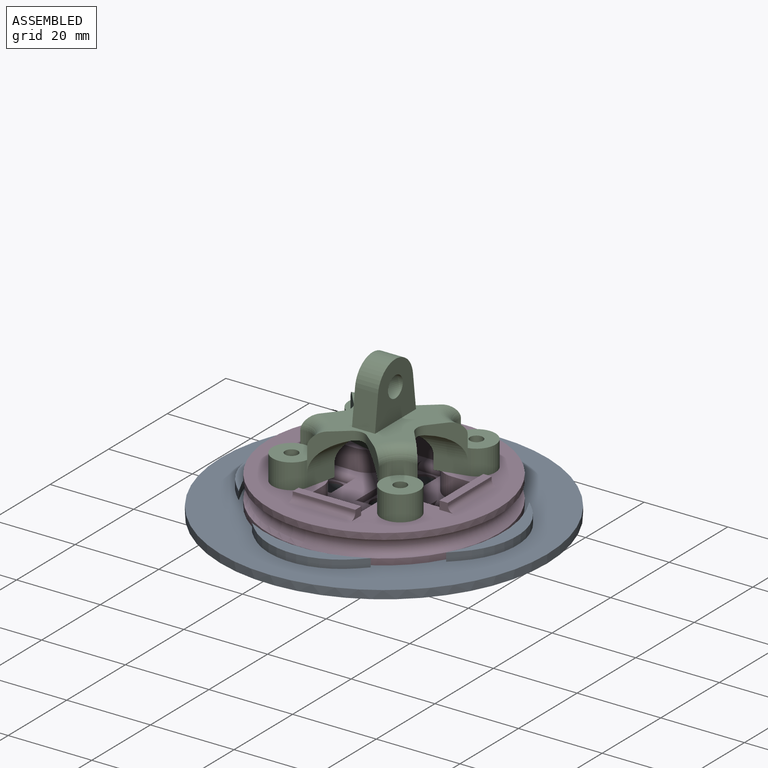
[diagram: assembled view]
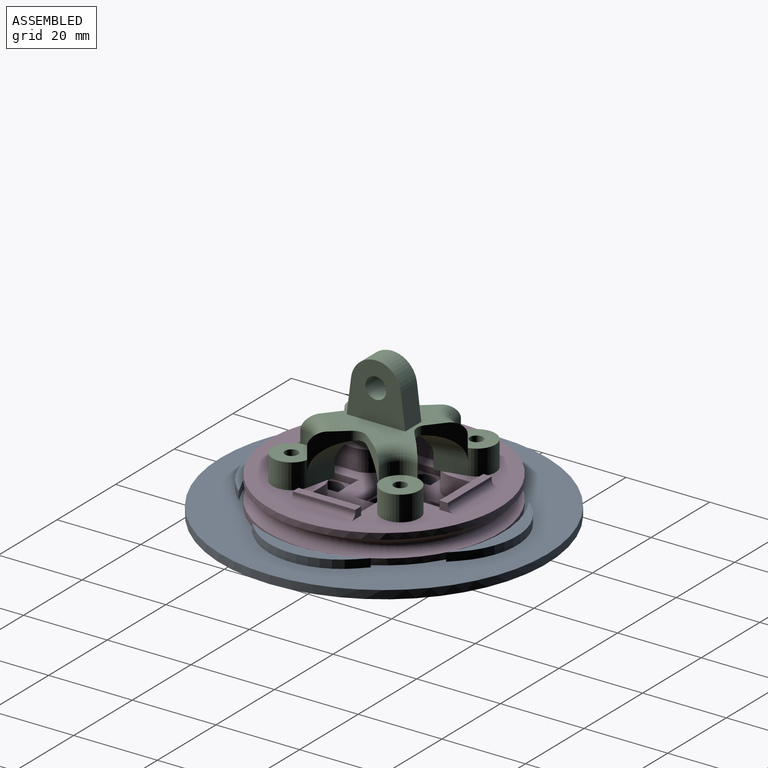
[diagram: assembled view, second angle]
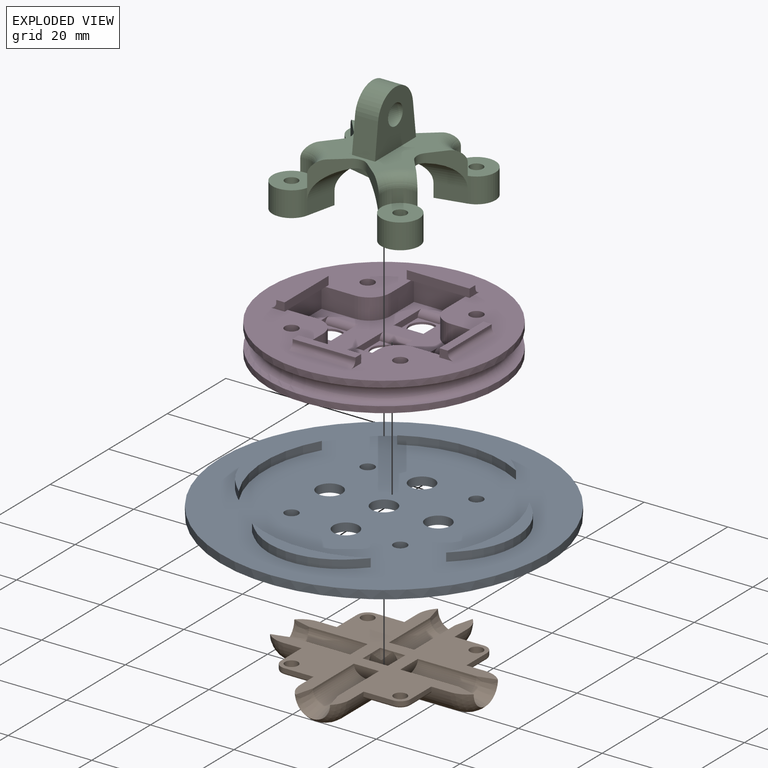
[diagram: exploded view]
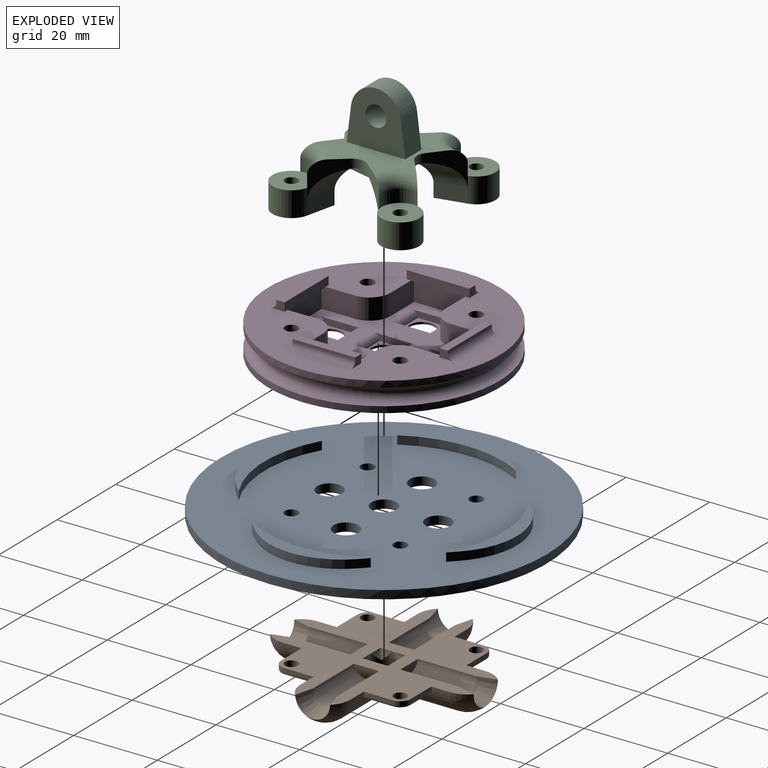
[diagram: exploded view, second angle]
ASSEMBLY  parts=4 mates=3
PART A: 32 faces, bbox 78x78x4 mm
  f0: plane 78x78mm, normal (0,0,-1), area 4347.7mm2, adj f1,f2,f3,f4,f5,f6,f7,f8
  f1: cylinder r=3mm len=6mm, axis (0,0,-1), area 37.7mm2, adj f0,f11
  f2: cylinder r=1.6mm len=3.2mm, axis (0,0,-1), area 20.1mm2, adj f0,f11
  f3: cylinder r=3mm len=6mm, axis (0,0,-1), area 37.7mm2, adj f0,f11
  f4: cylinder r=1.6mm len=3.2mm, axis (0,0,-1), area 20.1mm2, adj f0,f11
  f5: cylinder r=3mm len=6mm, axis (0,0,-1), area 37.7mm2, adj f0,f11
  f6: cylinder r=1.6mm len=3.2mm, axis (0,0,-1), area 20.1mm2, adj f0,f11
  f7: cylinder r=3mm len=6mm, axis (0,0,-1), area 37.7mm2, adj f0,f11
  f8: cylinder r=1.6mm len=3.2mm, axis (0,0,-1), area 20.1mm2, adj f0,f11
  f9: cylinder r=39mm len=78mm, axis (0,0,-1), area 490.1mm2, adj f0,f11
  f10: cylinder r=3mm len=6mm, axis (0,0,-1), area 37.7mm2, adj f0,f11
  f11: plane 78x78mm, normal (0,0,1), area 4604.8mm2, adj f1,f2,f3,f4,f5,f6,f7,f8
  f12: cylinder r=28.58mm len=28.4mm, axis (0,0,1), area 59.4mm2, adj f0,f13,f14,f15
  f13: plane 2x1.91mm, normal (-0.71,0.71,0), area 5.4mm2, adj f0,f12,f15,f29
  f14: plane 2x1.91mm, normal (-0.71,-0.71,0), area 5.4mm2, adj f0,f12,f15,f29
  f15: plane 28.4x7mm, normal (0,0,-1), area 64.3mm2, adj f12,f13,f14,f29
  f16: plane 2x1.91mm, normal (0.71,0.71,0), area 5.4mm2, adj f0,f18,f19,f31
  f17: plane 2x1.91mm, normal (-0.71,0.71,0), area 5.4mm2, adj f0,f18,f19,f31
  f18: cylinder r=28.58mm len=28.4mm, axis (0,0,1), area 59.4mm2, adj f0,f16,f17,f19
  f19: plane 28.4x7mm, normal (0,0,-1), area 64.3mm2, adj f16,f17,f18,f31
  f20: plane 2x1.91mm, normal (0.71,0.71,0), area 5.4mm2, adj f0,f21,f23,f30
  f21: cylinder r=28.58mm len=28.4mm, axis (0,0,1), area 59.4mm2, adj f0,f20,f22,f23
  f22: plane 2x1.91mm, normal (0.71,-0.71,0), area 5.4mm2, adj f0,f21,f23,f30
  f23: plane 28.4x7mm, normal (0,0,-1), area 64.3mm2, adj f20,f21,f22,f30
  f24: plane 2x1.91mm, normal (0.71,-0.71,0), area 5.4mm2, adj f0,f25,f27,f28
  f25: cylinder r=28.58mm len=28.4mm, axis (0,0,1), area 59.4mm2, adj f0,f24,f26,f27
  f26: plane 2x1.91mm, normal (-0.71,-0.71,0), area 5.4mm2, adj f0,f25,f27,f28
  f27: plane 28.4x7mm, normal (0,0,-1), area 64.3mm2, adj f24,f25,f26,f28
  f28: cylinder r=17.38mm len=24.58mm, axis (0,0,-1), area 54.6mm2, adj f0,f24,f26,f27
  f29: cylinder r=17.38mm len=24.58mm, axis (0,0,1), area 54.6mm2, adj f0,f13,f14,f15
  f30: cylinder r=17.38mm len=24.58mm, axis (0,0,1), area 54.6mm2, adj f0,f20,f22,f23
  f31: cylinder r=17.38mm len=24.58mm, axis (0,0,-1), area 54.6mm2, adj f0,f16,f17,f19
PART B: 66 faces, bbox 7x49.7x49.7 mm
  f0: cylinder r=6mm len=17.37mm, axis (0,1,0), area 226.9mm2, adj f18,f19,f29,f35,f37,f42,f45,f53
  f1: cylinder r=6mm len=17.37mm, axis (0,0,-1), area 226.7mm2, adj f16,f18,f29,f38,f41,f43,f45,f58
  f2: cylinder r=6mm len=17.37mm, axis (0,0,-1), area 226.7mm2, adj f17,f18,f29,f31,f33,f34,f37,f50
  f3: cylinder r=6mm len=17.37mm, axis (0,1,0), area 226.7mm2, adj f18,f23,f29,f30,f33,f39,f41,f52
  f4: cylinder r=3mm len=3mm, axis (0,0,-1), area 3.5mm2, adj f18,f27,f29
  f5: cylinder r=3mm len=3mm, axis (0,0,-1), area 3.5mm2, adj f7,f18,f29
  f6: cylinder r=3mm len=3mm, axis (0,1,0), area 3.5mm2, adj f9,f18,f29
  f7: cylinder r=3mm len=3mm, axis (0,1,0), area 3.5mm2, adj f5,f18,f29
  f8: cylinder r=3mm len=3mm, axis (0,0,-1), area 3.5mm2, adj f18,f26,f29
  f9: cylinder r=3mm len=3mm, axis (0,0,-1), area 3.5mm2, adj f6,f18,f29
  f10: cylinder r=3mm len=14mm, axis (0,0,-1), area 131.9mm2, adj f15,f18,f28
  f11: cylinder r=6mm len=6mm, axis (0,0,-1), area 14.6mm2, adj f18,f21
  f12: cylinder r=6mm len=6mm, axis (0,0,-1), area 14.6mm2, adj f18,f24
  f13: cone r=3mm half-angle=14.8deg, axis (0,0,1), area 50.4mm2, adj f14,f17,f18
  f14: cylinder r=3mm len=14mm, axis (0,0,-1), area 131.9mm2, adj f13,f18,f25
  f15: cone r=3mm half-angle=14.8deg, axis (0,0,-1), area 50.4mm2, adj f10,f16,f18
  f16: sphere r=6mm, area 81.8mm2, adj f1,f15,f18
  f17: sphere r=6mm, area 81.8mm2, adj f2,f13,f18
  f18: plane 48.67x48.67mm, normal (1,0,0), area 833.8mm2, adj f0,f1,f2,f3,f4,f5,f6,f7
  f19: sphere r=6mm, area 81.8mm2, adj f0,f18,f20
  f20: cone r=3mm half-angle=14.8deg, axis (0,1,0), area 50.4mm2, adj f18,f19,f21
  f21: cylinder r=3mm len=14mm, axis (0,1,0), area 131.9mm2, adj f11,f18,f20
  f22: cone r=3mm half-angle=14.8deg, axis (0,-1,0), area 50.4mm2, adj f18,f23,f24
  f23: sphere r=6mm, area 81.8mm2, adj f3,f18,f22
  f24: cylinder r=3mm len=14mm, axis (0,1,0), area 131.9mm2, adj f12,f18,f22
  f25: cylinder r=6mm len=6mm, axis (0,1,0), area 14.6mm2, adj f14,f18
  f26: cylinder r=3mm len=3mm, axis (0,1,0), area 3.5mm2, adj f8,f18,f29
  f27: cylinder r=3mm len=3mm, axis (0,1,0), area 3.5mm2, adj f4,f18,f29
  f28: cylinder r=6mm len=6mm, axis (0,1,0), area 14.6mm2, adj f10,f18
  f29: cylinder r=3mm len=6mm, axis (1,0,0), area 90.1mm2, adj f0,f1,f2,f3,f4,f5,f6,f7
  f30: plane 7.08x1mm, normal (0,-1,0), area 7mm2, adj f3,f18,f32,f52
  f31: plane 7.08x1mm, normal (0,0,1), area 7mm2, adj f2,f18,f32,f50
  f32: cylinder r=2.5mm len=2.5mm, axis (1,0,0), area 3.9mm2, adj f18,f30,f31,f51
  f33: plane 10.21x10.21mm, normal (-1,0,0), area 71.3mm2, adj f2,f3,f49,f50,f51,f52,f64
  f34: plane 7.08x1mm, normal (0,0,1), area 7mm2, adj f2,f18,f36,f55
  f35: plane 7.08x1mm, normal (0,1,0), area 7mm2, adj f0,f18,f36,f53
  f36: cylinder r=2.5mm len=2.5mm, axis (1,0,0), area 3.9mm2, adj f18,f34,f35,f54
  f37: plane 10.21x10.21mm, normal (-1,0,0), area 71.3mm2, adj f0,f2,f48,f53,f54,f55,f63
  f38: plane 7.08x1mm, normal (0,0,-1), area 7mm2, adj f1,f18,f40,f61
  f39: plane 7.08x1mm, normal (0,-1,0), area 7mm2, adj f3,f18,f40,f59
  f40: cylinder r=2.5mm len=2.5mm, axis (1,0,0), area 3.9mm2, adj f18,f38,f39,f60
  f41: plane 10.21x10.21mm, normal (-1,0,0), area 71.3mm2, adj f1,f3,f47,f59,f60,f61,f62
  f42: plane 7.08x1mm, normal (0,1,0), area 7mm2, adj f0,f18,f44,f56
  f43: plane 7.08x1mm, normal (0,0,-1), area 7mm2, adj f1,f18,f44,f58
  f44: cylinder r=2.5mm len=2.5mm, axis (1,0,0), area 3.9mm2, adj f18,f42,f43,f57
  f45: plane 10.21x10.21mm, normal (-1,0,0), area 71.3mm2, adj f0,f1,f46,f56,f57,f58,f65
  f46: cylinder r=1.55mm len=3.1mm, axis (1,0,0), area 14.6mm2, adj f18,f45
  f47: cylinder r=1.55mm len=3.1mm, axis (1,0,0), area 14.6mm2, adj f18,f41
  f48: cylinder r=1.55mm len=3.1mm, axis (1,0,0), area 14.6mm2, adj f18,f37
  f49: cylinder r=1.55mm len=3.1mm, axis (1,0,0), area 14.6mm2, adj f18,f33
  f50: cylinder r=0.5mm len=7.19mm, axis (0,1,0), area 5.6mm2, adj f2,f31,f33,f51
  f51: torus R=2mm, axis (1,0,0), area 2.9mm2, adj f32,f33,f50,f52
  f52: cylinder r=0.5mm len=7.19mm, axis (0,0,1), area 5.6mm2, adj f3,f30,f33,f51
  f53: cylinder r=0.5mm len=7.19mm, axis (0,0,-1), area 5.6mm2, adj f0,f35,f37,f54
  f54: torus R=2mm, axis (1,0,0), area 2.9mm2, adj f36,f37,f53,f55
  f55: cylinder r=0.5mm len=7.19mm, axis (0,1,0), area 5.6mm2, adj f2,f34,f37,f54
  f56: cylinder r=0.5mm len=7.19mm, axis (0,0,-1), area 5.6mm2, adj f0,f42,f45,f57
  f57: torus R=2mm, axis (1,0,0), area 2.9mm2, adj f44,f45,f56,f58
  f58: cylinder r=0.5mm len=7.19mm, axis (0,-1,0), area 5.6mm2, adj f1,f43,f45,f57
  f59: cylinder r=0.5mm len=7.19mm, axis (0,0,1), area 5.6mm2, adj f3,f39,f41,f60
  f60: torus R=2mm, axis (1,0,0), area 2.9mm2, adj f40,f41,f59,f61
  f61: cylinder r=0.5mm len=7.19mm, axis (0,-1,0), area 5.6mm2, adj f1,f38,f41,f60
  f62: bspline ~9.21x9.21mm, area 43.9mm2, adj f1,f3,f29,f41
  f63: bspline ~9.21x9.21mm, area 43.9mm2, adj f0,f2,f29,f37
  f64: bspline ~9.21x9.21mm, area 43.9mm2, adj f2,f3,f29,f33
  f65: bspline ~9.21x9.21mm, area 43.9mm2, adj f0,f1,f29,f45
PART C: 63 faces, bbox 35.1x35.1x25.5 mm
  f0: plane 0.91x0.42mm, normal (0,0,1), area 0.2mm2, adj f52,f54,f57
  f1: plane 0.91x0.42mm, normal (0,0,1), area 0.2mm2, adj f48,f50,f58
  f2: plane 0.91x0.42mm, normal (0,0,1), area 0.2mm2, adj f51,f53,f56
  f3: plane 9.1x9.1mm, normal (0,0,-1), area 57.5mm2, adj f6,f7,f9
  f4: plane 7.06x3.22mm, normal (-0.97,0.22,0), area 23.3mm2, adj f5,f6,f8,f53
  f5: plane 7.06x3.22mm, normal (0.22,-0.97,0), area 23.3mm2, adj f4,f6,f8,f54
  f6: cylinder r=4.55mm len=8.99mm, axis (0,0,-1), area 116.4mm2, adj f3,f4,f5,f8,f38,f39
  f7: cylinder r=1.55mm len=6mm, axis (0,0,-1), area 58.4mm2, adj f3,f8
  f8: plane 10.6x10.6mm, normal (0,0,1), area 69.5mm2, adj f4,f5,f6,f7
  f9: cylinder r=4.55mm len=5.56mm, axis (0,0,1), area 27.6mm2, adj f3,f38,f39,f60
  f10: plane 9.1x9.1mm, normal (0,0,-1), area 57.5mm2, adj f13,f14,f16
  f11: plane 7.06x3.22mm, normal (-0.22,-0.97,0), area 23.3mm2, adj f12,f13,f15,f49
  f12: plane 7.06x3.22mm, normal (0.97,0.22,0), area 23.3mm2, adj f11,f13,f15,f51
  f13: cylinder r=4.55mm len=8.99mm, axis (0,0,-1), area 116.4mm2, adj f10,f11,f12,f15,f36,f37
  f14: cylinder r=1.55mm len=6mm, axis (0,0,-1), area 58.4mm2, adj f10,f15
  f15: plane 10.6x10.6mm, normal (0,0,1), area 69.5mm2, adj f11,f12,f13,f14
  f16: cylinder r=4.55mm len=5.56mm, axis (0,0,1), area 27.6mm2, adj f10,f36,f37,f59
  f17: plane 0.91x0.42mm, normal (0,0,1), area 0.2mm2, adj f47,f49,f55
  f18: plane 9.1x9.1mm, normal (0,0,-1), area 57.5mm2, adj f21,f22,f30
  f19: plane 7.06x3.22mm, normal (0.97,-0.22,0), area 23.3mm2, adj f20,f21,f23,f48
  f20: plane 7.06x3.22mm, normal (-0.22,0.97,0), area 23.3mm2, adj f19,f21,f23,f47
  f21: cylinder r=4.55mm len=8.99mm, axis (0,0,-1), area 116.4mm2, adj f18,f19,f20,f23,f35,f42
  f22: cylinder r=1.55mm len=6mm, axis (0,0,-1), area 58.4mm2, adj f18,f23
  f23: plane 10.6x10.6mm, normal (0,0,1), area 69.5mm2, adj f19,f20,f21,f22
  f24: plane 9.1x9.1mm, normal (0,0,-1), area 57.5mm2, adj f27,f28,f31
  f25: plane 7.06x3.22mm, normal (0.22,0.97,0), area 23.3mm2, adj f26,f27,f29,f52
  f26: plane 7.06x3.22mm, normal (-0.97,-0.22,0), area 23.3mm2, adj f25,f27,f29,f50
  f27: cylinder r=4.55mm len=8.99mm, axis (0,0,-1), area 116.4mm2, adj f24,f25,f26,f29,f40,f41
  f28: cylinder r=1.55mm len=6mm, axis (0,0,-1), area 58.4mm2, adj f24,f29
  f29: plane 10.6x10.6mm, normal (0,0,1), area 69.5mm2, adj f25,f26,f27,f28
  f30: cylinder r=4.55mm len=5.56mm, axis (0,0,1), area 27.6mm2, adj f18,f35,f42,f62
  f31: cylinder r=4.55mm len=5.56mm, axis (0,0,1), area 27.6mm2, adj f24,f40,f41,f61
  f32: plane 14x13.5mm, normal (-1,0,0), area 134.8mm2, adj f34,f43,f44,f45,f46
  f33: plane 14x13.5mm, normal (1,0,0), area 134.8mm2, adj f34,f43,f44,f45,f46
  f34: plane 23.15x23.15mm, normal (0,0,-1), area 259.8mm2, adj f32,f33,f35,f36,f37,f38,f39,f40
  f35: plane 8.78x6.66mm, normal (-0.77,0.63,0), area 30.5mm2, adj f21,f30,f34,f47,f55,f62
  f36: plane 8.78x6.66mm, normal (-0.77,-0.63,0), area 30.5mm2, adj f13,f16,f34,f49,f55,f59
  f37: plane 8.78x6.66mm, normal (0.63,0.77,0), area 30.5mm2, adj f13,f16,f34,f51,f56,f59
  f38: plane 8.78x6.66mm, normal (-0.63,0.77,0), area 30.5mm2, adj f6,f9,f34,f53,f56,f60
  f39: plane 8.78x6.66mm, normal (0.77,-0.63,0), area 30.5mm2, adj f6,f9,f34,f54,f57,f60
  f40: plane 8.78x6.66mm, normal (0.77,0.63,0), area 30.5mm2, adj f27,f31,f34,f52,f57,f61
  f41: plane 8.78x6.66mm, normal (-0.63,-0.77,0), area 30.5mm2, adj f27,f31,f34,f50,f58,f61
  f42: plane 8.78x6.66mm, normal (0.63,-0.77,0), area 30.5mm2, adj f21,f30,f34,f48,f58,f62
  f43: plane 8.26x5.5mm, normal (0,0.99,-0.13), area 45.8mm2, adj f32,f33,f34,f44
  f44: cylinder r=6mm len=11.9mm, axis (-1,0,0), area 95.3mm2, adj f32,f33,f43,f46
  f45: cylinder r=2.5mm len=5.5mm, axis (-1,0,0), area 86.4mm2, adj f32,f33
  f46: plane 8.26x5.5mm, normal (0,-0.99,-0.13), area 45.8mm2, adj f32,f33,f34,f44
  f47: cylinder r=6.78mm len=16.68mm, axis (0.97,0.22,0), area 78.4mm2, adj f17,f20,f35,f48,f49,f55
  f48: cylinder r=6.78mm len=16.68mm, axis (-0.22,-0.97,0), area 78.4mm2, adj f1,f19,f42,f47,f50,f58
  f49: cylinder r=6.78mm len=16.68mm, axis (-0.97,0.22,0), area 78.4mm2, adj f11,f17,f36,f47,f51,f55
  f50: cylinder r=6.78mm len=16.68mm, axis (-0.22,0.97,0), area 78.4mm2, adj f1,f26,f41,f48,f52,f58
  f51: cylinder r=6.78mm len=16.68mm, axis (0.22,-0.97,0), area 78.4mm2, adj f2,f12,f37,f49,f53,f56
  f52: cylinder r=6.78mm len=16.68mm, axis (0.97,-0.22,0), area 78.4mm2, adj f0,f25,f40,f50,f54,f57
  f53: cylinder r=6.78mm len=16.68mm, axis (0.22,0.97,0), area 78.4mm2, adj f2,f4,f38,f51,f54,f56
  f54: cylinder r=6.78mm len=16.68mm, axis (-0.97,-0.22,0), area 78.4mm2, adj f0,f5,f39,f52,f53,f57
  f55: cylinder r=3mm len=3.8mm, axis (0,0,1), area 8.5mm2, adj f17,f34,f35,f36,f47,f49
  f56: cylinder r=3mm len=3.8mm, axis (0,0,-1), area 8.5mm2, adj f2,f34,f37,f38,f51,f53
  f57: cylinder r=3mm len=3.8mm, axis (0,0,1), area 8.5mm2, adj f0,f34,f39,f40,f52,f54
  f58: cylinder r=3mm len=3.8mm, axis (0,0,-1), area 8.5mm2, adj f1,f34,f41,f42,f48,f50
  f59: torus R=7.55mm, axis (0,0,-1), area 42.4mm2, adj f16,f34,f36,f37
  f60: torus R=7.55mm, axis (0,0,-1), area 42.4mm2, adj f9,f34,f38,f39
  f61: torus R=7.55mm, axis (0,0,-1), area 42.4mm2, adj f31,f34,f40,f41
  f62: torus R=7.55mm, axis (0,0,-1), area 42.4mm2, adj f30,f34,f35,f42
PART D: 94 faces, bbox 62.8x62.8x9 mm
  f0: cylinder r=27.58mm len=55.15mm, axis (0,0,-1), area 259.9mm2, adj f25,f93
  f1: plane 55.15x55.15mm, normal (0,0,1), area 1337.1mm2, adj f9,f10,f12,f13,f15,f16,f18,f19
  f2: cylinder r=3mm len=6mm, axis (0,0,-1), area 9.4mm2, adj f25,f50
  f3: cylinder r=3mm len=6mm, axis (0,0,-1), area 9.4mm2, adj f25,f30
  f4: cylinder r=3mm len=6mm, axis (0,0,-1), area 9.4mm2, adj f25,f45
  f5: cylinder r=3mm len=6mm, axis (0,0,-1), area 9.4mm2, adj f25,f40
  f6: cylinder r=3mm len=6mm, axis (0,0,-1), area 9.4mm2, adj f25,f35
  f7: plane 39x39mm, normal (0,0,1), area 521.8mm2, adj f8,f9,f10,f11,f12,f13,f14,f15
  f8: plane 13x5mm, normal (1,0,0), area 65mm2, adj f7,f9,f23,f67
  f9: plane 8x5mm, normal (0,-1,0), area 40mm2, adj f1,f7,f8,f51,f67
  f10: plane 8x5mm, normal (1,0,0), area 40mm2, adj f1,f7,f11,f51,f61
  f11: plane 13x5mm, normal (0,-1,0), area 65mm2, adj f7,f10,f12,f61
  f12: plane 8x5mm, normal (-1,0,0), area 40mm2, adj f1,f7,f11,f54,f61
  f13: plane 8x5mm, normal (0,-1,0), area 40mm2, adj f1,f7,f14,f54,f55
  f14: plane 13x5mm, normal (-1,0,0), area 65mm2, adj f7,f13,f15,f55
  f15: plane 8x5mm, normal (0,1,0), area 40mm2, adj f1,f7,f14,f53,f55
  f16: plane 8x5mm, normal (-1,0,0), area 40mm2, adj f1,f7,f17,f53,f73
  f17: plane 13x5mm, normal (0,1,0), area 65mm2, adj f7,f16,f18,f73
  f18: plane 8x5mm, normal (1,0,0), area 40mm2, adj f1,f7,f17,f52,f73
  f19: cylinder r=1.6mm len=7mm, axis (0,0,-1), area 70.4mm2, adj f1,f25
  f20: cylinder r=1.6mm len=7mm, axis (0,0,-1), area 70.4mm2, adj f1,f25
  f21: cylinder r=1.6mm len=7mm, axis (0,0,-1), area 70.4mm2, adj f1,f25
  f22: cylinder r=27.58mm len=55.15mm, axis (0,0,-1), area 259.9mm2, adj f1,f93
  f23: plane 8x5mm, normal (0,1,0), area 40mm2, adj f1,f7,f8,f52,f67
  f24: cylinder r=1.6mm len=7mm, axis (0,0,-1), area 70.4mm2, adj f1,f25
  f25: plane 55.15x55.15mm, normal (0,0,-1), area 2215.6mm2, adj f0,f2,f3,f4,f5,f6,f19,f20
  f26: plane 7x0.08mm, normal (0,-1,0), area 0.5mm2, adj f27,f29,f30,f90
  f27: plane 9.85x1.5mm, normal (1,0,0), area 11.4mm2, adj f7,f26,f28,f30,f89,f90
  f28: plane 7x0.08mm, normal (0,1,0), area 0.5mm2, adj f27,f29,f30,f89
  f29: plane 9.85x1.5mm, normal (-1,0,0), area 11.4mm2, adj f7,f26,f28,f30,f89,f90
  f30: plane 7x7mm, normal (0,0,1), area 20.7mm2, adj f3,f26,f27,f28,f29
  f31: plane 9.85x1.5mm, normal (1,0,0), area 11.4mm2, adj f7,f32,f34,f35,f87,f88
  f32: plane 7x0.08mm, normal (0,1,0), area 0.5mm2, adj f31,f33,f35,f87
  f33: plane 9.85x1.5mm, normal (-1,0,0), area 11.4mm2, adj f7,f32,f34,f35,f87,f88
  f34: plane 7x0.08mm, normal (0,-1,0), area 0.5mm2, adj f31,f33,f35,f88
  f35: plane 7x7mm, normal (0,0,1), area 20.7mm2, adj f6,f31,f32,f33,f34
  f36: plane 7x0.08mm, normal (0,1,0), area 0.5mm2, adj f37,f39,f40,f86
  f37: plane 9.85x1.5mm, normal (-1,0,0), area 11.4mm2, adj f7,f36,f38,f40,f85,f86
  f38: plane 7x0.08mm, normal (0,-1,0), area 0.5mm2, adj f37,f39,f40,f85
  f39: plane 9.85x1.5mm, normal (1,0,0), area 11.4mm2, adj f7,f36,f38,f40,f85,f86
  f40: plane 7x7mm, normal (0,0,1), area 20.7mm2, adj f5,f36,f37,f38,f39
  f41: plane 9.85x1.5mm, normal (-1,0,0), area 11.4mm2, adj f7,f42,f44,f45,f83,f84
  f42: plane 7x0.08mm, normal (0,-1,0), area 0.5mm2, adj f41,f43,f45,f83
  f43: plane 9.85x1.5mm, normal (1,0,0), area 11.4mm2, adj f7,f42,f44,f45,f83,f84
  f44: plane 7x0.08mm, normal (0,1,0), area 0.5mm2, adj f41,f43,f45,f84
  f45: plane 7x7mm, normal (0,0,1), area 20.7mm2, adj f4,f41,f42,f43,f44
  f46: plane 9.85x1.5mm, normal (-1,0,0), area 11.4mm2, adj f7,f47,f49,f50,f91,f92
  f47: plane 7x0.08mm, normal (0,-1,0), area 0.5mm2, adj f46,f48,f50,f91
  f48: plane 9.85x1.5mm, normal (1,0,0), area 11.4mm2, adj f7,f47,f49,f50,f91,f92
  f49: plane 7x0.08mm, normal (0,1,0), area 0.5mm2, adj f46,f48,f50,f92
  f50: plane 7x7mm, normal (0,0,1), area 20.7mm2, adj f2,f46,f47,f48,f49
  f51: cylinder r=5mm len=5mm, axis (0,0,1), area 39.3mm2, adj f1,f7,f9,f10
  f52: cylinder r=5mm len=5mm, axis (0,0,1), area 39.3mm2, adj f1,f7,f18,f23
  f53: cylinder r=5mm len=5mm, axis (0,0,1), area 39.3mm2, adj f1,f7,f15,f16
  f54: cylinder r=5mm len=5mm, axis (0,0,1), area 39.3mm2, adj f1,f7,f12,f13
  f55: plane 13x1mm, normal (0,0,-1), area 13mm2, adj f13,f14,f15,f56
  f56: plane 15x2mm, normal (-1,0,0), area 30mm2, adj f1,f55,f57,f59,f60
  f57: plane 3.42x2mm, normal (0,-1,0), area 4.4mm2, adj f1,f56,f58,f60,f82
  f58: plane 15x0.58mm, normal (1,0,0), area 8.6mm2, adj f57,f59,f60,f82
  f59: plane 3.42x2mm, normal (0,1,0), area 4.4mm2, adj f1,f56,f58,f60,f82
  f60: plane 15x2mm, normal (0,0,1), area 30mm2, adj f56,f57,f58,f59
  f61: plane 13x1mm, normal (0,0,-1), area 13mm2, adj f10,f11,f12,f62
  f62: plane 15x2mm, normal (0,-1,0), area 30mm2, adj f1,f61,f63,f65,f66
  f63: plane 3.42x2mm, normal (1,0,0), area 4.4mm2, adj f1,f62,f64,f66,f81
  f64: plane 15x0.58mm, normal (0,1,0), area 8.6mm2, adj f63,f65,f66,f81
  f65: plane 3.42x2mm, normal (-1,0,0), area 4.4mm2, adj f1,f62,f64,f66,f81
  f66: plane 15x2mm, normal (0,0,1), area 30mm2, adj f62,f63,f64,f65
  f67: plane 13x1mm, normal (0,0,-1), area 13mm2, adj f8,f9,f23,f68
  f68: plane 15x2mm, normal (1,0,0), area 30mm2, adj f1,f67,f69,f71,f72
  f69: plane 3.42x2mm, normal (0,1,0), area 4.4mm2, adj f1,f68,f70,f72,f80
  f70: plane 15x0.58mm, normal (-1,0,0), area 8.6mm2, adj f69,f71,f72,f80
  f71: plane 3.42x2mm, normal (0,-1,0), area 4.4mm2, adj f1,f68,f70,f72,f80
  f72: plane 15x2mm, normal (0,0,1), area 30mm2, adj f68,f69,f70,f71
  f73: plane 13x1mm, normal (0,0,-1), area 13mm2, adj f16,f17,f18,f74
  f74: plane 15x2mm, normal (0,1,0), area 30mm2, adj f1,f73,f75,f77,f78
  f75: plane 3.42x2mm, normal (-1,0,0), area 4.4mm2, adj f1,f74,f76,f78,f79
  f76: plane 15x0.58mm, normal (0,-1,0), area 8.6mm2, adj f75,f77,f78,f79
  f77: plane 3.42x2mm, normal (1,0,0), area 4.4mm2, adj f1,f74,f76,f78,f79
  f78: plane 15x2mm, normal (0,0,1), area 30mm2, adj f74,f75,f76,f77
  f79: cylinder r=1.42mm len=15mm, axis (1,0,0), area 33.6mm2, adj f1,f75,f76,f77
  f80: cylinder r=1.42mm len=15mm, axis (0,-1,0), area 33.6mm2, adj f1,f69,f70,f71
  f81: cylinder r=1.42mm len=15mm, axis (-1,0,0), area 33.6mm2, adj f1,f63,f64,f65
  f82: cylinder r=1.42mm len=15mm, axis (0,1,0), area 33.6mm2, adj f1,f57,f58,f59
  f83: cylinder r=1.42mm len=7mm, axis (1,0,0), area 15.7mm2, adj f7,f41,f42,f43
  f84: cylinder r=1.42mm len=7mm, axis (-1,0,0), area 15.7mm2, adj f7,f41,f43,f44
  f85: cylinder r=1.42mm len=7mm, axis (1,0,0), area 15.7mm2, adj f7,f37,f38,f39
  f86: cylinder r=1.42mm len=7mm, axis (-1,0,0), area 15.7mm2, adj f7,f36,f37,f39
  f87: cylinder r=1.42mm len=7mm, axis (-1,0,0), area 15.7mm2, adj f7,f31,f32,f33
  f88: cylinder r=1.42mm len=7mm, axis (1,0,0), area 15.7mm2, adj f7,f31,f33,f34
  f89: cylinder r=1.42mm len=7mm, axis (-1,0,0), area 15.7mm2, adj f7,f27,f28,f29
  f90: cylinder r=1.42mm len=7mm, axis (1,0,0), area 15.7mm2, adj f7,f26,f27,f29
  f91: cylinder r=1.42mm len=7mm, axis (1,0,0), area 15.7mm2, adj f7,f46,f47,f48
  f92: cylinder r=1.42mm len=7mm, axis (-1,0,0), area 15.7mm2, adj f7,f46,f48,f49
  f93: torus R=27.58mm, axis (0,0,-1), area 1038.5mm2, adj f0,f22
PLACE A rot(axis=(1,0,0),180deg) t=(28.94,38.44,24.74)mm
PLACE B rot(axis=(0,-1,0),90deg) t=(28.94,38.44,22.74)mm
PLACE C rot(axis=(1,0,0),180deg) t=(28.94,38.44,37.74)mm
PLACE D t=(28.94,38.44,24.74)mm
MATE fastened C.f6 <-> D.f19  axis (0,0,-1) through (41.94,25.44,31.74)mm
MATE fastened A.f25 <-> D.f4  axis (0,0,1) through (28.94,38.44,24.74)mm
MATE fastened A.f2 <-> B.f54  axis (0,0,-1) through (15.94,51.44,22.74)mm
